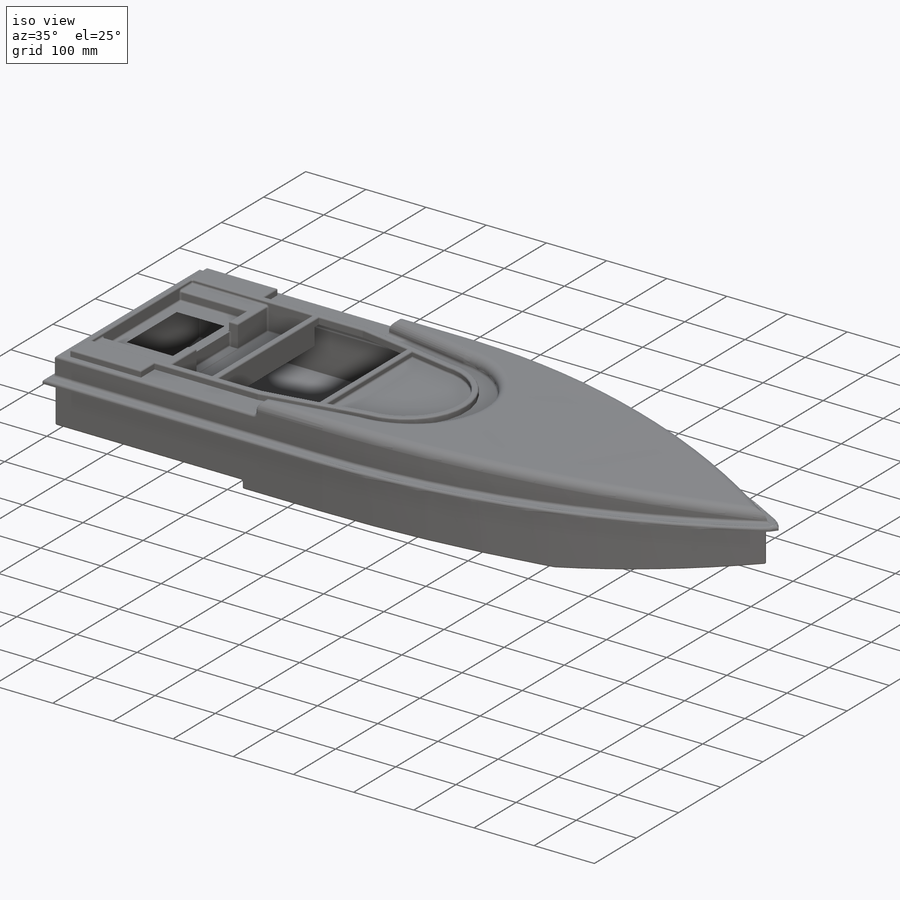
[diagram: iso view]
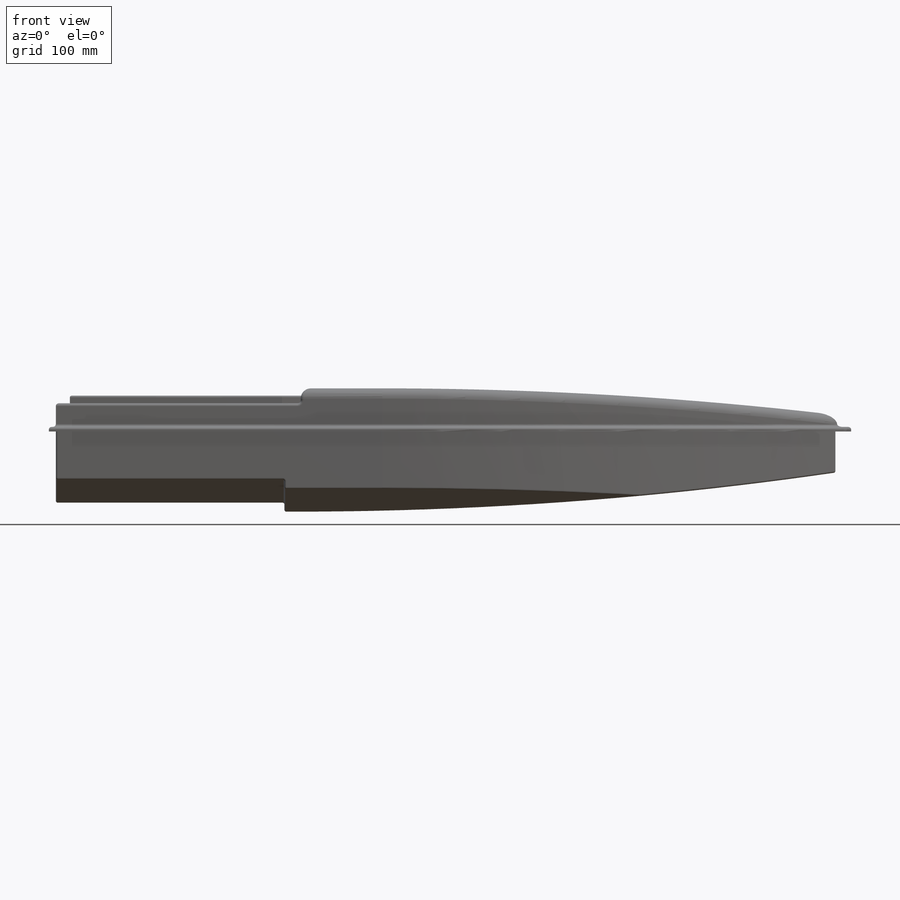
[diagram: front view]
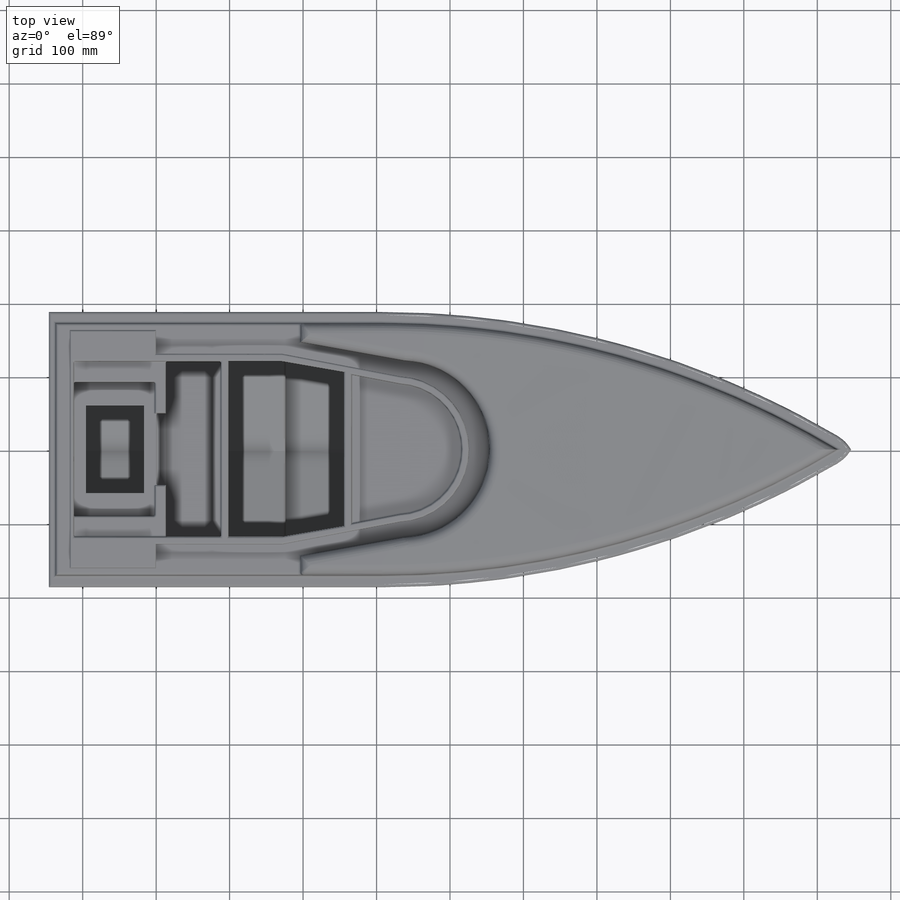
[diagram: top view]
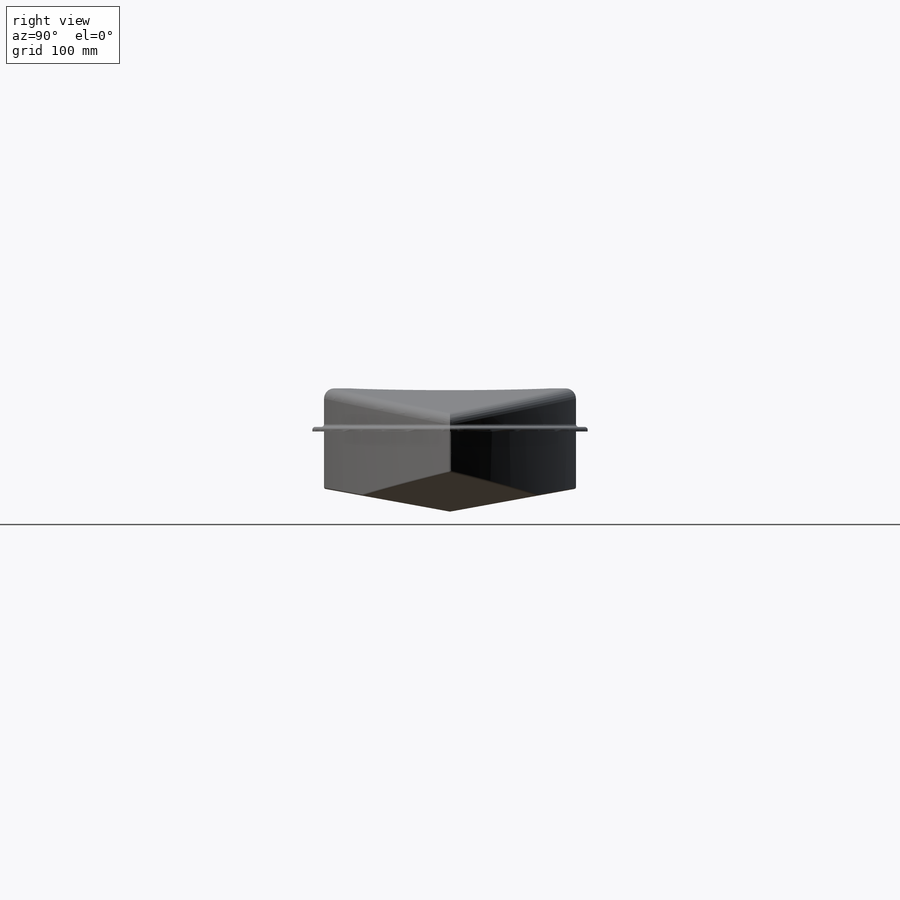
[diagram: right view]
SOLIDWORKS PART (.sldprt)
format: sldprt  version: not decoded by parser v0  size: 1,195,520 bytes
history: native  units: mm
features: sketch x24, extrude x14, cut_extrude x10, fillet x8, material x1, shell x1 (+16 scaffold rows collapsed)
feature tree (74):
  scaffold x16  (default folders/planes/origin — collapsed)
  material  "PVC Rigid"
  sketch  "Sketch1"  dims[D1=19.05mm]
  extrude  "Extrude1"  Depth=12.7mm
  sketch  "Sketch2"  dims[D1=19.05mm]
  extrude  "Extrude2"  Depth=6.35mm
  sketch  "Sketch3"  dims[D1=~2.38125mm]
  cut_extrude  "Extrude3"  Depth=4.7625mm
  sketch  "Sketch4"
  extrude  "Extrude4"  Depth=114.3mm
  sketch  "Sketch5"  dims[D1=101.6mm]
  cut_extrude  "Extrude5"  Depth=311.15mm
  sketch  "Sketch6"  dims[D1=12.192mm]
  cut_extrude  "Extrude6"  [1 undecoded]
  sketch  "Sketch9"  dims[D1=25.654mm]
  cut_extrude  "Extrude7"  Depth=304.8mm
  sketch  "Sketch10"
  extrude  "Extrude8"  Depth=17.78mm
  fillet  "Fillet2"  Radius=1.27mm
  fillet  "Fillet5"  Radius=2.54mm
  shell  "Shell6"  Thickness=1.6256mm
  sketch  "Sketch15"
  extrude  "Extrude11"  Depth=1.6256mm
  sketch  "Sketch12"  dims[D1=10.16mm]
  extrude  "Extrude9"  Depth=10.414mm
  sketch  "Sketch16"
  cut_extrude  "Extrude12"  Depth=1.6256mm
  fillet  "Fillet8"  Radius=2.54mm
  sketch  "Sketch18"
  extrude  "Extrude13"  Depth=3.81mm
  sketch  "Sketch19"  dims[D1=1.5875mm]
  extrude  "Extrude15"  Depth=40.64mm
  sketch  "Sketch22"  dims[D1=1.5875mm]
  cut_extrude  "Extrude18"  Depth=39.054532mm
  sketch  "Sketch23"  dims[D1=1.5875mm]
  extrude  "Extrude20"  Depth=15.494mm
  sketch  "Sketch25"
  cut_extrude  "Extrude21"  Depth=15.24mm
  sketch  "Sketch26"  dims[D1=40.64mm]
  cut_extrude  "Extrude22"  [1 undecoded]
  sketch  "Sketch27"  dims[D1=1.5875mm]
  extrude  "Extrude23"  [1 undecoded]
  sketch  "Sketch28"  dims[D1=14.605mm]
  extrude  "Extrude24"  Depth=1.5875mm
  sketch  "Sketch29"  dims[D1=14.605mm]
  extrude  "Extrude25"  Depth=1.5875mm
  sketch  "Sketch30"
  extrude  "Extrude27"  Depth=1.5875mm
  sketch  "Sketch31"  dims[D1=16.51mm]
  cut_extrude  "Extrude28"  [1 undecoded]
  fillet  "Fillet9"  Radius=2.54mm
  sketch  "Sketch32"  dims[D1=571.5mm]
  extrude  "Extrude29"  Depth=20.32mm
  fillet  "Fillet10"  Radius=3.81mm
  fillet  "Fillet11"  Radius=3.81mm
  sketch  "Sketch33"
  cut_extrude  "Extrude30"  [1 undecoded]
  fillet  "Fillet13"  Radius=13.97mm
  fillet  "Fillet15"  Radius=13.97mm
decode coverage: 44 of 57 modeling features carry decoded parameters
note: ~ marks probable driven/reference dimensions
note: 5 parameter values undecoded
summary: no parameter record found for 5 features
note: suppression state not decoded; provenance and decode notes live in map.json
